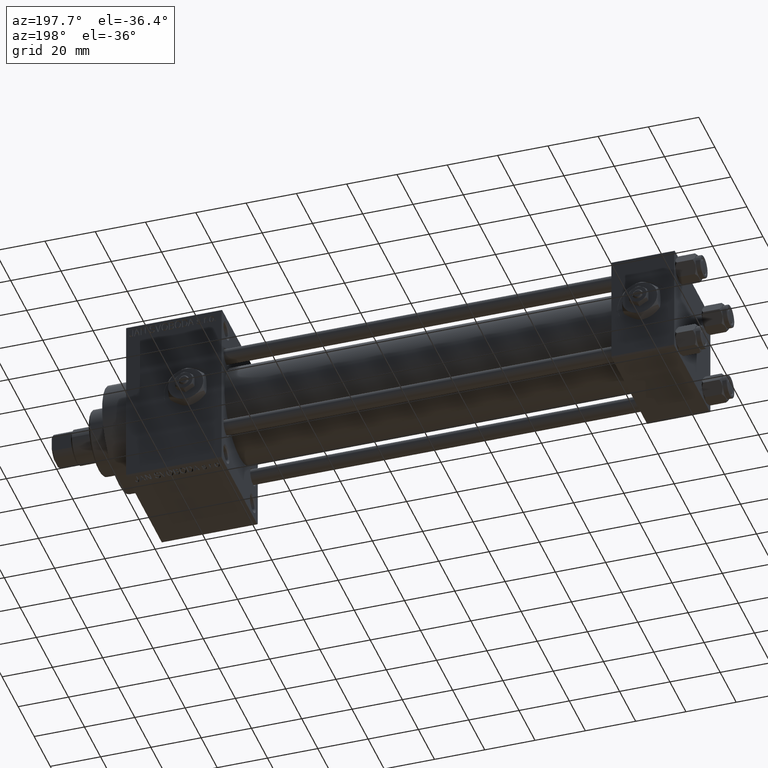
[diagram: clean part render]
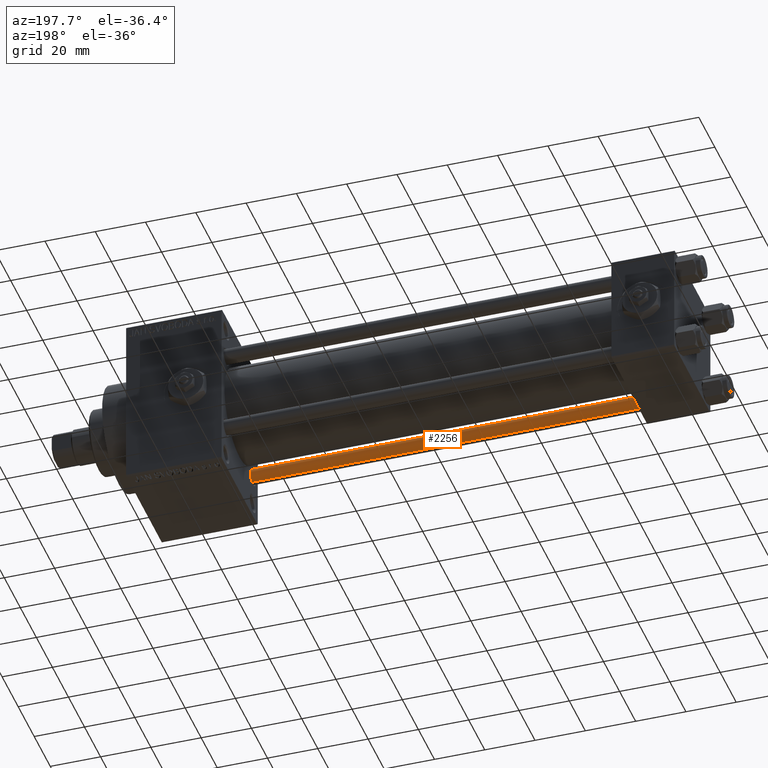
[diagram: same view with one face highlighted and labeled with its STEP entity id]
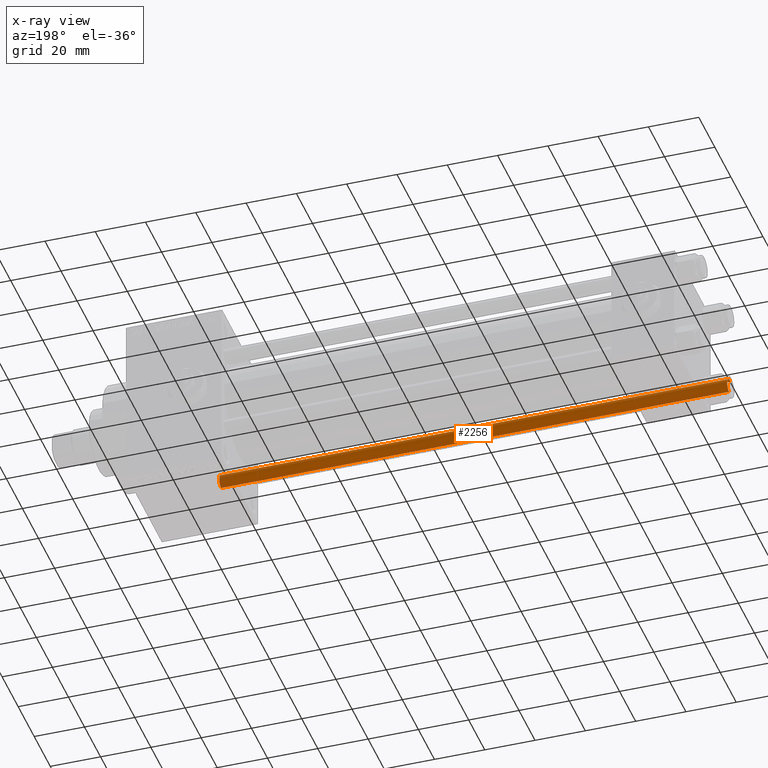
[diagram: x-ray of the same camera — body ghosted, the highlighted face saturated]
A machine part, auxiliary view. The second image highlights one B-rep face of the part: STEP entity #2256.
The next image is the same camera in x-ray: the body ghosted, the highlighted face saturated — about 1% of this face is hidden behind the body in this view.
In plain terms, the highlighted cylindrical surface (edge-blend (fillet) strip) has radius 3 mm, axis along (-1, 0, 0).
Its self-contained STEP definition (entity closure, byte-faithful):
#796 = CARTESIAN_POINT ( 'NONE',  ( 3.000000000000000444, 3.673940397442059868E-16, 202.5000000000000853 ) ) ;
#817 = EDGE_CURVE ( 'NONE', #46139, #14098, #32713, .T. ) ;
#2256 = ADVANCED_FACE ( 'NONE', ( #46784 ), #13120, .T. ) ;
#2502 = CARTESIAN_POINT ( 'NONE',  ( -3.000000000000000444, 0.000000000000000000, 203.0000000000000000 ) ) ;
#4734 = VERTEX_POINT ( 'NONE', #27584 ) ;
#4879 = DIRECTION ( 'NONE',  ( -1.000000000000000000, 0.000000000000000000, 0.000000000000000000 ) ) ;
#6267 = EDGE_CURVE ( 'NONE', #4734, #6912, #21222, .T. ) ;
#6912 = VERTEX_POINT ( 'NONE', #14547 ) ;
#9000 = ORIENTED_EDGE ( 'NONE', *, *, #21974, .T. ) ;
#9707 = CARTESIAN_POINT ( 'NONE',  ( 3.000000000000000444, 3.673940397442059868E-16, 0.5000000000001114664 ) ) ;
#10318 = ORIENTED_EDGE ( 'NONE', *, *, #6267, .T. ) ;
#11399 = ORIENTED_EDGE ( 'NONE', *, *, #41618, .T. ) ;
#12101 = DIRECTION ( 'NONE',  ( 1.000000000000000000, 0.000000000000000000, 0.000000000000000000 ) ) ;
#13120 = CYLINDRICAL_SURFACE ( 'NONE', #36040, 3.000000000000000444 ) ;
#14098 = VERTEX_POINT ( 'NONE', #9707 ) ;
#14547 = CARTESIAN_POINT ( 'NONE',  ( -3.000000000000000444, 0.000000000000000000, 0.5000000000001114664 ) ) ;
#18006 = EDGE_LOOP ( 'NONE', ( #40837, #9000, #10318, #11399 ) ) ;
#18453 = VECTOR ( 'NONE', #44433, 1000.000000000000000 ) ;
#18470 = DIRECTION ( 'NONE',  ( 1.000000000000000000, 0.000000000000000000, 0.000000000000000000 ) ) ;
#19613 = AXIS2_PLACEMENT_3D ( 'NONE', #40938, #29957, #18470 ) ;
#21222 = LINE ( 'NONE', #2502, #37745 ) ;
#21974 = EDGE_CURVE ( 'NONE', #46139, #4734, #26249, .T. ) ;
#22591 = CARTESIAN_POINT ( 'NONE',  ( 0.000000000000000000, 0.000000000000000000, 202.5000000000000853 ) ) ;
#26249 = CIRCLE ( 'NONE', #35793, 3.000000000000000444 ) ;
#27584 = CARTESIAN_POINT ( 'NONE',  ( -3.000000000000000444, 0.000000000000000000, 202.5000000000000853 ) ) ;
#29957 = DIRECTION ( 'NONE',  ( -0.000000000000000000, -0.000000000000000000, 1.000000000000000000 ) ) ;
#32201 = DIRECTION ( 'NONE',  ( -0.000000000000000000, -0.000000000000000000, -1.000000000000000000 ) ) ;
#32713 = LINE ( 'NONE', #40941, #18453 ) ;
#35321 = CARTESIAN_POINT ( 'NONE',  ( 0.000000000000000000, 0.000000000000000000, 203.0000000000000000 ) ) ;
#35793 = AXIS2_PLACEMENT_3D ( 'NONE', #22591, #37820, #12101 ) ;
#36040 = AXIS2_PLACEMENT_3D ( 'NONE', #35321, #36061, #4879 ) ;
#36061 = DIRECTION ( 'NONE',  ( -0.000000000000000000, -0.000000000000000000, -1.000000000000000000 ) ) ;
#37745 = VECTOR ( 'NONE', #32201, 1000.000000000000000 ) ;
#37820 = DIRECTION ( 'NONE',  ( 0.000000000000000000, 0.000000000000000000, -1.000000000000000000 ) ) ;
#40837 = ORIENTED_EDGE ( 'NONE', *, *, #817, .F. ) ;
#40938 = CARTESIAN_POINT ( 'NONE',  ( 0.000000000000000000, 0.000000000000000000, 0.5000000000001114664 ) ) ;
#40941 = CARTESIAN_POINT ( 'NONE',  ( 3.000000000000000444, 3.673940397442059868E-16, 203.0000000000000000 ) ) ;
#41137 = CIRCLE ( 'NONE', #19613, 3.000000000000000444 ) ;
#41618 = EDGE_CURVE ( 'NONE', #6912, #14098, #41137, .T. ) ;
#44433 = DIRECTION ( 'NONE',  ( -0.000000000000000000, -0.000000000000000000, -1.000000000000000000 ) ) ;
#46139 = VERTEX_POINT ( 'NONE', #796 ) ;
#46784 = FACE_OUTER_BOUND ( 'NONE', #18006, .T. ) ;